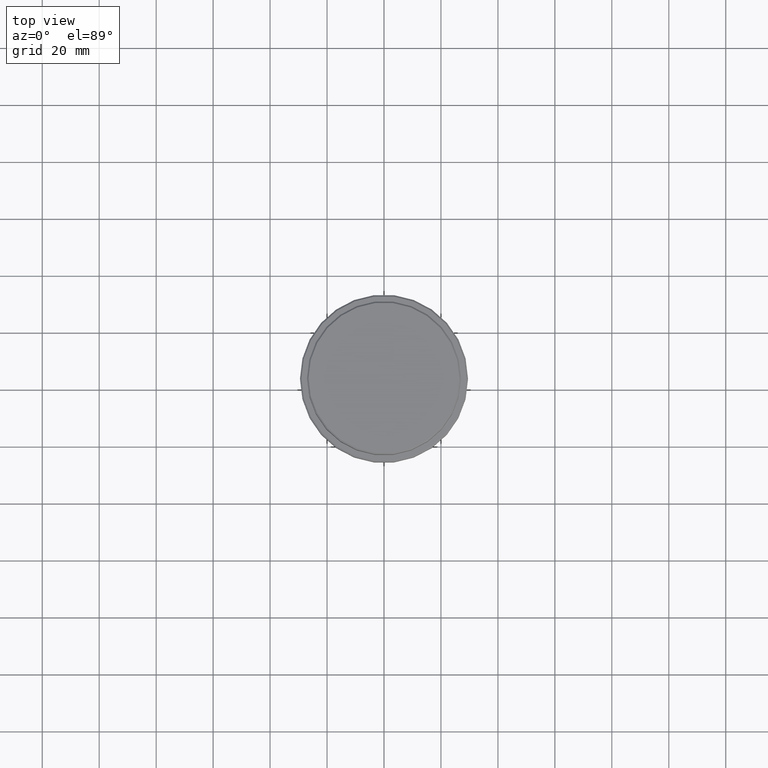
[diagram: clean part render]
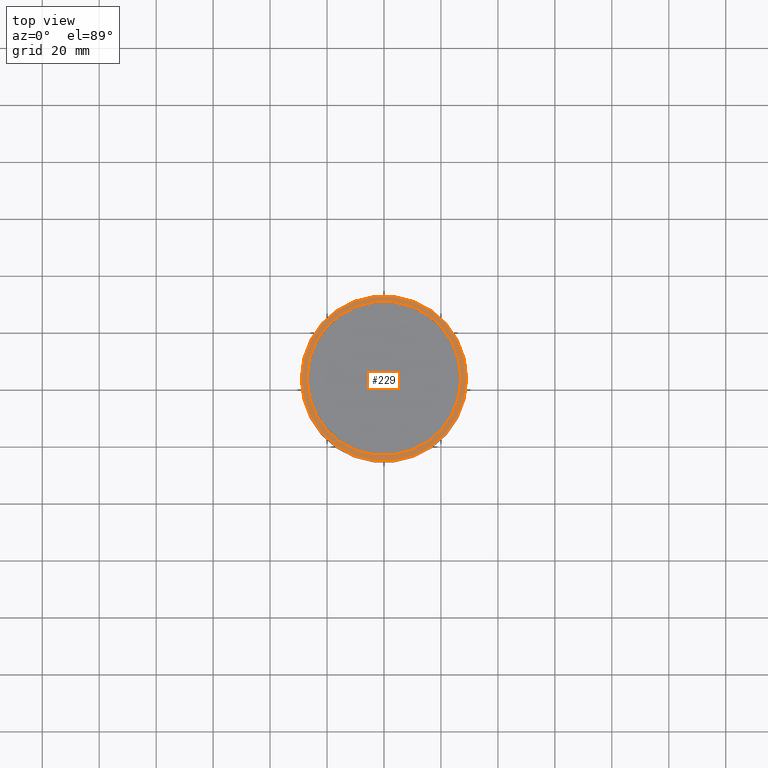
[diagram: same view with one face highlighted and labeled with its STEP entity id]
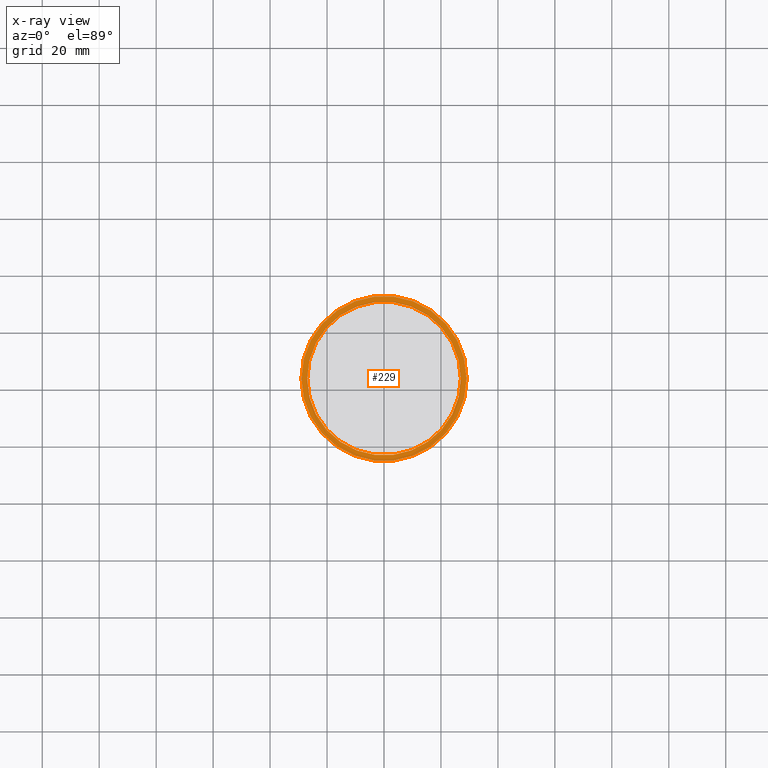
[diagram: x-ray of the same camera — body ghosted, the highlighted face saturated]
A machine part, top view. The second image highlights one B-rep face of the part: STEP entity #229.
The next image is the same camera in x-ray: the body ghosted, the highlighted face saturated — about 0% of this face is hidden behind the body in this view.
In plain terms, the highlighted planar face has unit normal (0, -0, 1).
Its self-contained STEP definition (entity closure, byte-faithful):
#35 = AXIS2_PLACEMENT_3D ( 'NONE', #619, #68, #625 ) ;
#43 = DIRECTION ( 'NONE',  ( 1.000000000000000000, 0.000000000000000000, 0.000000000000000000 ) ) ;
#68 = DIRECTION ( 'NONE',  ( -0.000000000000000000, -0.000000000000000000, 1.000000000000000000 ) ) ;
#75 = CARTESIAN_POINT ( 'NONE',  ( -28.99999999999997158, 0.000000000000000000, -12.00000000000000355 ) ) ;
#142 = DIRECTION ( 'NONE',  ( 0.000000000000000000, -0.000000000000000000, 1.000000000000000000 ) ) ;
#164 = FACE_OUTER_BOUND ( 'NONE', #641, .T. ) ;
#173 = DIRECTION ( 'NONE',  ( 1.000000000000000000, 0.000000000000000000, 0.000000000000000000 ) ) ;
#198 = EDGE_CURVE ( 'NONE', #438, #960, #970, .T. ) ;
#219 = DIRECTION ( 'NONE',  ( -0.000000000000000000, -0.000000000000000000, 1.000000000000000000 ) ) ;
#229 = ADVANCED_FACE ( 'NONE', ( #164, #248 ), #372, .T. ) ;
#248 = FACE_BOUND ( 'NONE', #344, .T. ) ;
#331 = AXIS2_PLACEMENT_3D ( 'NONE', #686, #142, #712 ) ;
#339 = ORIENTED_EDGE ( 'NONE', *, *, #1396, .T. ) ;
#344 = EDGE_LOOP ( 'NONE', ( #339, #704 ) ) ;
#372 = PLANE ( 'NONE',  #331 ) ;
#387 = ORIENTED_EDGE ( 'NONE', *, *, #867, .T. ) ;
#404 = VERTEX_POINT ( 'NONE', #1177 ) ;
#422 = CIRCLE ( 'NONE', #493, 28.99999999999997158 ) ;
#425 = EDGE_CURVE ( 'NONE', #404, #1191, #422, .T. ) ;
#438 = VERTEX_POINT ( 'NONE', #663 ) ;
#493 = AXIS2_PLACEMENT_3D ( 'NONE', #523, #219, #775 ) ;
#523 = CARTESIAN_POINT ( 'NONE',  ( 0.000000000000000000, 0.000000000000000000, -12.00000000000000355 ) ) ;
#577 = DIRECTION ( 'NONE',  ( 0.000000000000000000, 0.000000000000000000, -1.000000000000000000 ) ) ;
#601 = AXIS2_PLACEMENT_3D ( 'NONE', #1158, #577, #173 ) ;
#619 = CARTESIAN_POINT ( 'NONE',  ( 0.000000000000000000, 0.000000000000000000, -12.00000000000000355 ) ) ;
#625 = DIRECTION ( 'NONE',  ( 1.000000000000000000, 0.000000000000000000, 0.000000000000000000 ) ) ;
#641 = EDGE_LOOP ( 'NONE', ( #387, #965 ) ) ;
#663 = CARTESIAN_POINT ( 'NONE',  ( -26.99999999999999645, 3.306546357697853339E-15, -12.00000000000000355 ) ) ;
#686 = CARTESIAN_POINT ( 'NONE',  ( 0.000000000000000000, 26.49999999999999645, -12.00000000000000355 ) ) ;
#704 = ORIENTED_EDGE ( 'NONE', *, *, #198, .T. ) ;
#712 = DIRECTION ( 'NONE',  ( 1.000000000000000000, 0.000000000000000000, 0.000000000000000000 ) ) ;
#725 = CIRCLE ( 'NONE', #836, 26.99999999999999645 ) ;
#765 = CIRCLE ( 'NONE', #35, 28.99999999999997158 ) ;
#775 = DIRECTION ( 'NONE',  ( 1.000000000000000000, 0.000000000000000000, 0.000000000000000000 ) ) ;
#836 = AXIS2_PLACEMENT_3D ( 'NONE', #1356, #1242, #43 ) ;
#867 = EDGE_CURVE ( 'NONE', #1191, #404, #765, .T. ) ;
#960 = VERTEX_POINT ( 'NONE', #985 ) ;
#965 = ORIENTED_EDGE ( 'NONE', *, *, #425, .T. ) ;
#970 = CIRCLE ( 'NONE', #601, 26.99999999999999645 ) ;
#985 = CARTESIAN_POINT ( 'NONE',  ( 26.99999999999999645, 0.000000000000000000, -12.00000000000000355 ) ) ;
#1158 = CARTESIAN_POINT ( 'NONE',  ( 0.000000000000000000, 0.000000000000000000, -12.00000000000000355 ) ) ;
#1177 = CARTESIAN_POINT ( 'NONE',  ( 28.99999999999997158, 3.582091887506006239E-15, -12.00000000000000355 ) ) ;
#1191 = VERTEX_POINT ( 'NONE', #75 ) ;
#1242 = DIRECTION ( 'NONE',  ( 0.000000000000000000, 0.000000000000000000, -1.000000000000000000 ) ) ;
#1356 = CARTESIAN_POINT ( 'NONE',  ( 0.000000000000000000, 0.000000000000000000, -12.00000000000000355 ) ) ;
#1396 = EDGE_CURVE ( 'NONE', #960, #438, #725, .T. ) ;